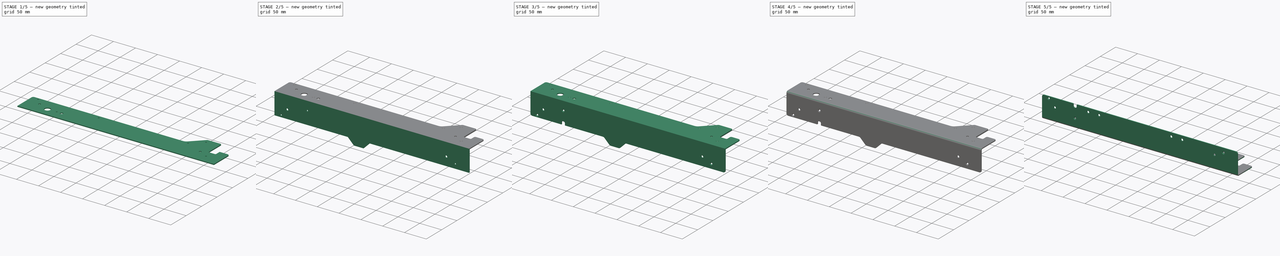
[diagram: build sequence overview — one tinted view per stage of 5, left to right]
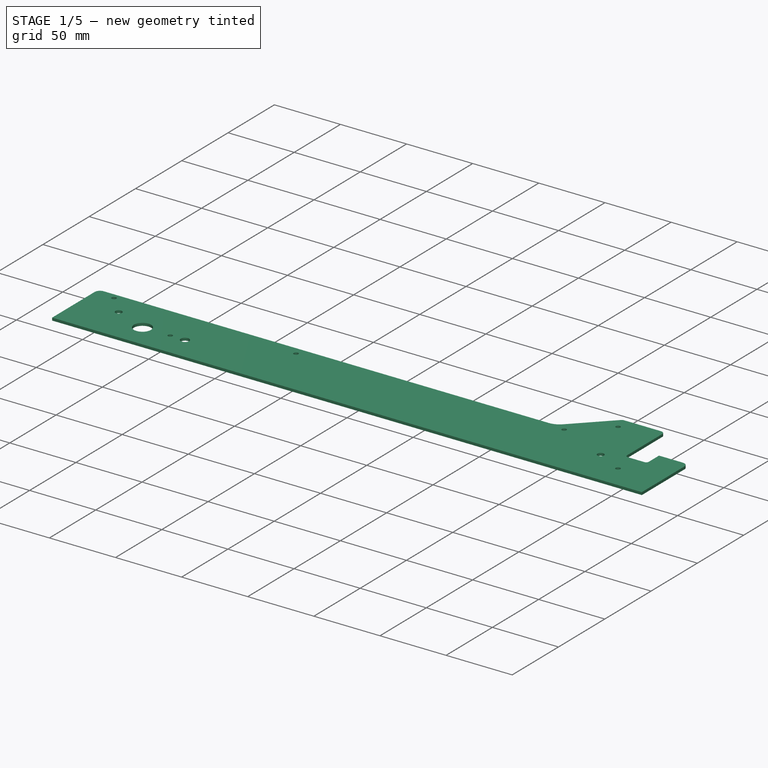
[diagram: stage 1 of 5 — iso view after this stage's code; geometry added in this stage tinted green]
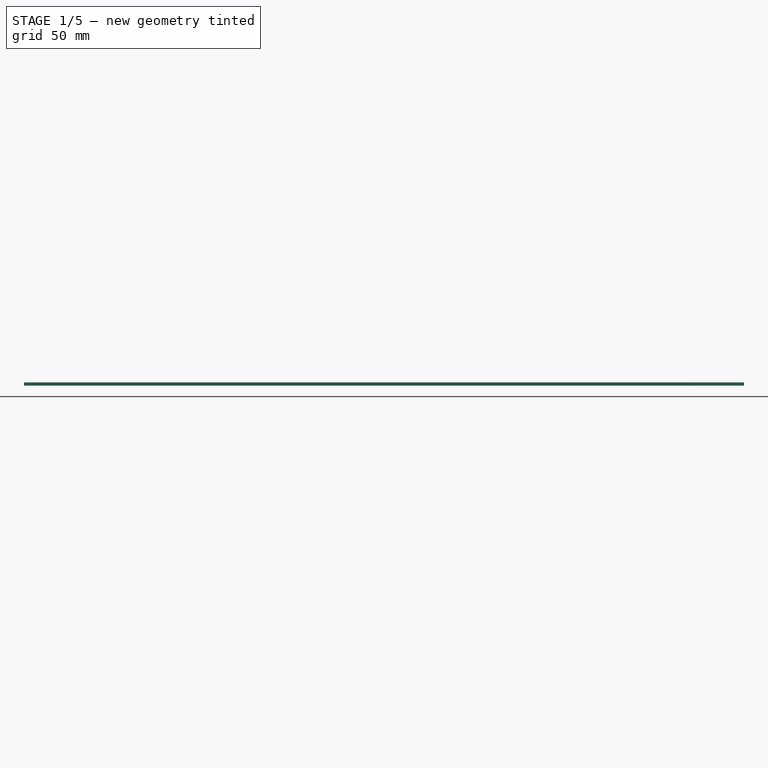
[diagram: stage 1 of 5 — front view after this stage's code; geometry added in this stage tinted green]
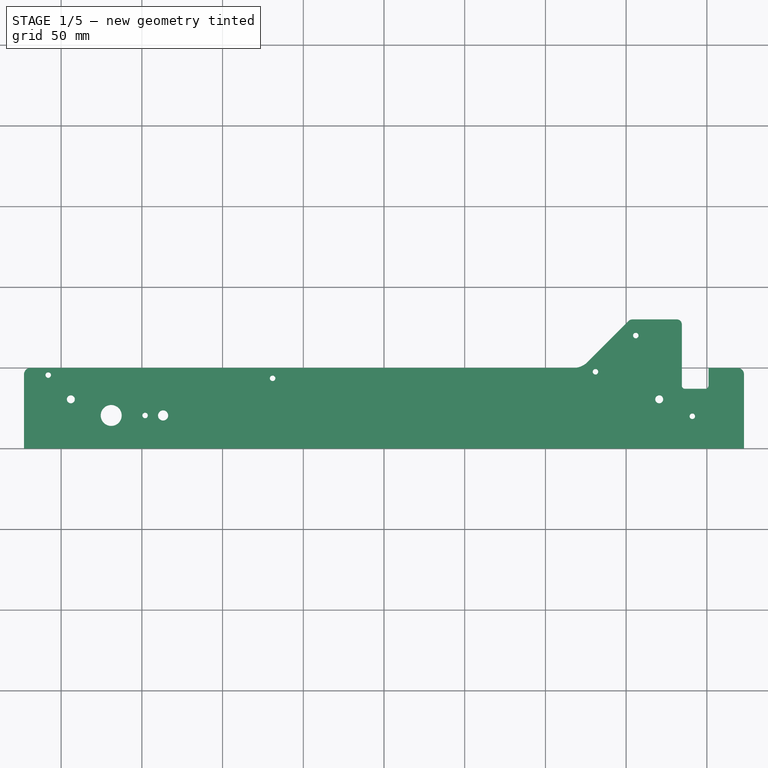
[diagram: stage 1 of 5 — top view after this stage's code; geometry added in this stage tinted green]
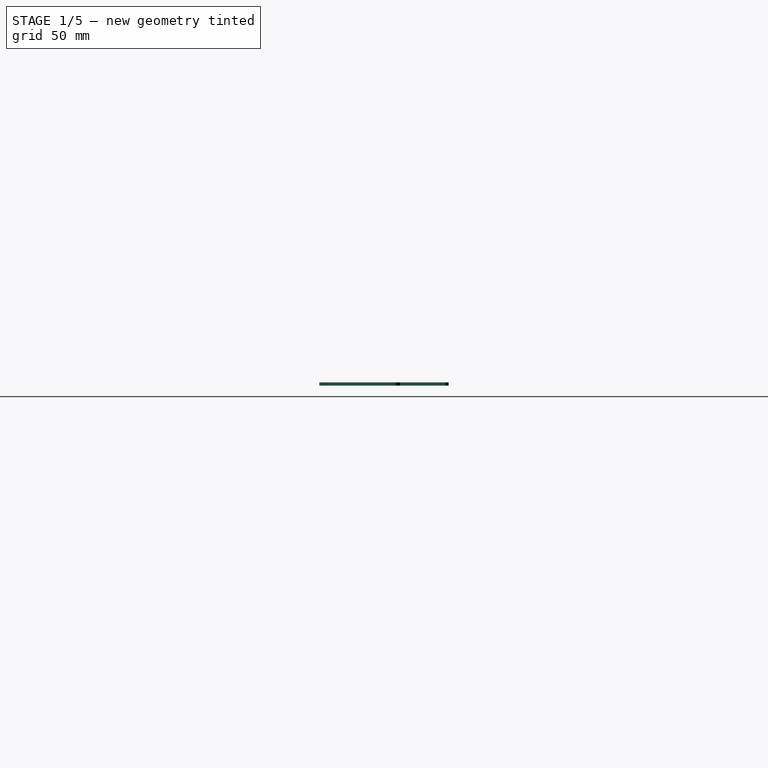
[diagram: stage 1 of 5 — right view after this stage's code; geometry added in this stage tinted green]
FCSTD DOCUMENT  (FreeCAD 0.14R3310 (Git))
Label: 12. ESQUINA MARCO INTERIOR 001 (MIRROR) (SIN LLAVE)
License: CC-BY 3.0
LicenseURL: http://creativecommons.org/licenses/by/3.0/
objects: PartDesign::Fillet×8, Sketcher::SketchObject×5, PartDesign::Pocket×3, PartDesign::Pad×2, PartDesign::Chamfer×2, Part::Mirroring×1
note: 26 computed .brp shape members not serialized (recipe doc carries the construction recipe); baked Part::Feature solids carry a one-line shape summary decoded from their .brp

FEATURE [Sketcher::SketchObject] Sketch
  sketch-geometry (25):
    g0: LineSegment StartX=-223 StartY=0 StartZ=0 EndX=223 EndY=0 EndZ=0
    g1: LineSegment StartX=-223 StartY=0 StartZ=0 EndX=-223 EndY=46 EndZ=0
    g2: LineSegment StartX=-219 StartY=50 StartZ=0 EndX=117.53 EndY=50 EndZ=0
    g3: LineSegment StartX=223 StartY=0 StartZ=0 EndX=223 EndY=50 EndZ=0
    g4: LineSegment StartX=223 StartY=50 StartZ=0 EndX=201 EndY=50 EndZ=0
    g5: LineSegment StartX=201 StartY=50 StartZ=0 EndX=201 EndY=37 EndZ=0
    g6: LineSegment StartX=201 StartY=37 StartZ=0 EndX=184.5 EndY=37 EndZ=0
    g7: LineSegment StartX=184.5 StartY=37 StartZ=0 EndX=184.5 EndY=76.9968 EndZ=0
    g8: LineSegment StartX=181.5 StartY=79.9968 StartZ=0 EndX=153.74 EndY=79.9968 EndZ=0
    g9: LineSegment StartX=126.015 StartY=53.5147 StartZ=0 EndX=151.619 EndY=79.1181 EndZ=0
    g10: ArcOfCircle CenterX=153.74 CenterY=76.9968 CenterZ=0 NormalX=0 NormalY=0 NormalZ=1 Radius=3 StartAngle=1.5708 EndAngle=2.35619
    g11: ArcOfCircle CenterX=117.53 CenterY=62 CenterZ=0 NormalX=0 NormalY=0 NormalZ=1 Radius=12 StartAngle=4.71239 EndAngle=5.49779
    g12: ArcOfCircle CenterX=181.5 CenterY=76.9968 CenterZ=0 NormalX=0 NormalY=0 NormalZ=1 Radius=3 StartAngle=0 EndAngle=1.5708
    g13: ArcOfCircle CenterX=-219 CenterY=46 CenterZ=0 NormalX=0 NormalY=0 NormalZ=1 Radius=4 StartAngle=1.5708 EndAngle=3.14159
    g14: LineSegment [constr] StartX=-223 StartY=20.5 StartZ=0 EndX=-123 EndY=20.5 EndZ=0
    g15: Circle CenterX=-169 CenterY=20.5 CenterZ=0 NormalX=0 NormalY=0 NormalZ=1 Radius=6.5
    g16: Circle CenterX=-148 CenterY=20.5 CenterZ=0 NormalX=0 NormalY=0 NormalZ=1 Radius=1.7
    g17: Circle CenterX=-136.85 CenterY=20.5 CenterZ=0 NormalX=0 NormalY=0 NormalZ=1 Radius=3.15
    g18: Circle CenterX=-208 CenterY=45.5 CenterZ=0 NormalX=0 NormalY=0 NormalZ=1 Radius=1.7
    g19: Circle CenterX=-69 CenterY=43.5 CenterZ=0 NormalX=0 NormalY=0 NormalZ=1 Radius=1.7
    g20: Circle CenterX=156 CenterY=69.9968 CenterZ=0 NormalX=0 NormalY=0 NormalZ=1 Radius=1.7
    g21: Circle CenterX=131 CenterY=47.54 CenterZ=0 NormalX=0 NormalY=0 NormalZ=1 Radius=1.7
    g22: Circle CenterX=170.5 CenterY=30.5 CenterZ=0 NormalX=0 NormalY=0 NormalZ=1 Radius=2.46
    g23: Circle CenterX=191 CenterY=20 CenterZ=0 NormalX=0 NormalY=0 NormalZ=1 Radius=1.7
    g24: Circle CenterX=-194 CenterY=30.5 CenterZ=0 NormalX=0 NormalY=0 NormalZ=1 Radius=2.46
  constraints (72):
    c: PointOnObject(g0,g-1)
    c: Horizontal(g0)
    c: Symmetric(g0,g0,g-1)
    c: Coincident(g1,g0)
    c: Vertical(g1)
    c: Horizontal(g2)
    c: Coincident(g3,g0)
    c: Vertical(g3)
    c: DistanceY(g3) = 50
    c: Coincident(g4,g3)
    c: Horizontal(g4)
    c: DistanceX(g4) = -22
    c: Coincident(g5,g4)
    c: Vertical(g5)
    c: DistanceY(g5) = -13
    c: Coincident(g6,g5)
    c: Horizontal(g6)
    c: DistanceX(g6) = -16.5
    c: Coincident(g7,g6)
    c: Vertical(g7)
    c: Horizontal(g8)
    c: Angle(g9,g2) = 2.35619
    c: Tangent(g8,g10)
    c: Tangent(g9,g10)
    c: Tangent(g9,g11)
    c: Tangent(g2,g11)
    c: Radius(g11) = 12
    c: Radius(g10) = 3
    c: Tangent(g8,g12)
    c: Tangent(g7,g12)
    c: Radius(g12) = 3
    c: DistanceX(g8) = -27.76
    c: Tangent(g2,g13)
    c: Tangent(g1,g13)
    c: Distance(g2,g0) = 50
    c: Radius(g13) = 4
    c: DistanceX(g2) = 336.53
    c: Horizontal(g14)
    c: PointOnObject(g14,g1)
    c: DistanceX(g14) = 100
    c: Distance(g0) = 446
    c: Distance(g14,g0) = 20.5
    c: PointOnObject(g15,g14)
    c: PointOnObject(g17,g14)
    c: Radius(g17) = 3.15
    c: Radius(g16) = 1.7
    c: Radius(g15) = 6.5
    c: Distance(g15,g14) = 54
    c: Distance(g16,g1) = 75
    c: Distance(g17,g1) = 86.15
    c: Distance(g18,g2) = 4.5
    c: Distance(g18,g1) = 15
    c: Equal(g18,g16)
    c: PointOnObject(g16,g14)
    c: Equal(g19,g18)
    c: Distance(g19,g2) = 6.5
    c: Distance(g19,g1) = 154
    c: Distance(g23,g3) = 32
    c: Distance(g23,g0) = 20
    c: Radius(g23) = 1.7
    c: Equal(g23,g21)
    c: Equal(g21,g20)
    c: Distance(g22,g0) = 30.5
    c: Distance(g22,g7) = 14
    c: Radius(g22) = 2.46
    c: Distance(g21,g2) = 2.46
    c: Distance(g21,g7) = 53.5
    c: Distance(g20,g8) = 10
    c: Distance(g20,g7) = 28.5
    c: Radius(g24) = 2.46
    c: Distance(g24,g1) = 29
    c: Distance(g24,g2) = 19.5
FEATURE [PartDesign::Pad] Pad
  Length = 2
  Length2 = 100
  Sketch = -> Sketch
  Type = 0
FEATURE [PartDesign::Fillet] Fillet
  Base = -> Pad [Edge11]
  Radius = 4
FEATURE [PartDesign::Fillet] Fillet001
  Base = -> Fillet [Edge57,Edge59]
  Radius = 2
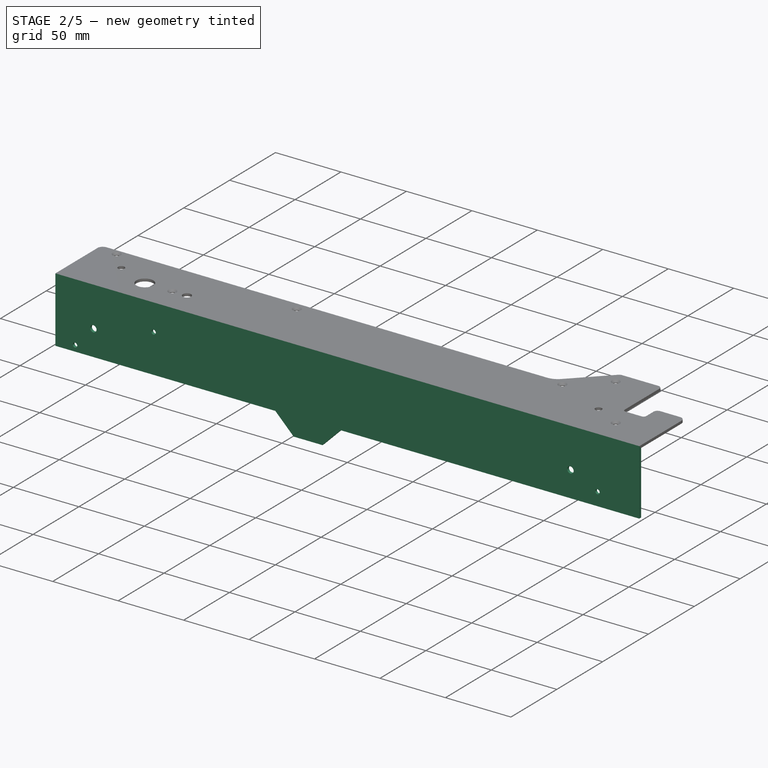
[diagram: stage 2 of 5 — iso view after this stage's code; geometry added in this stage tinted green]
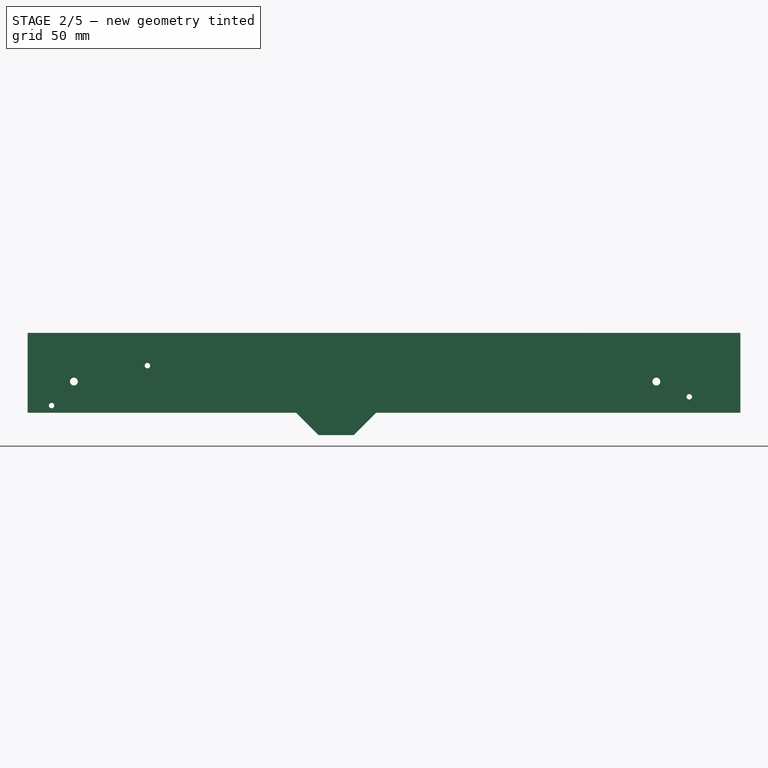
[diagram: stage 2 of 5 — front view after this stage's code; geometry added in this stage tinted green]
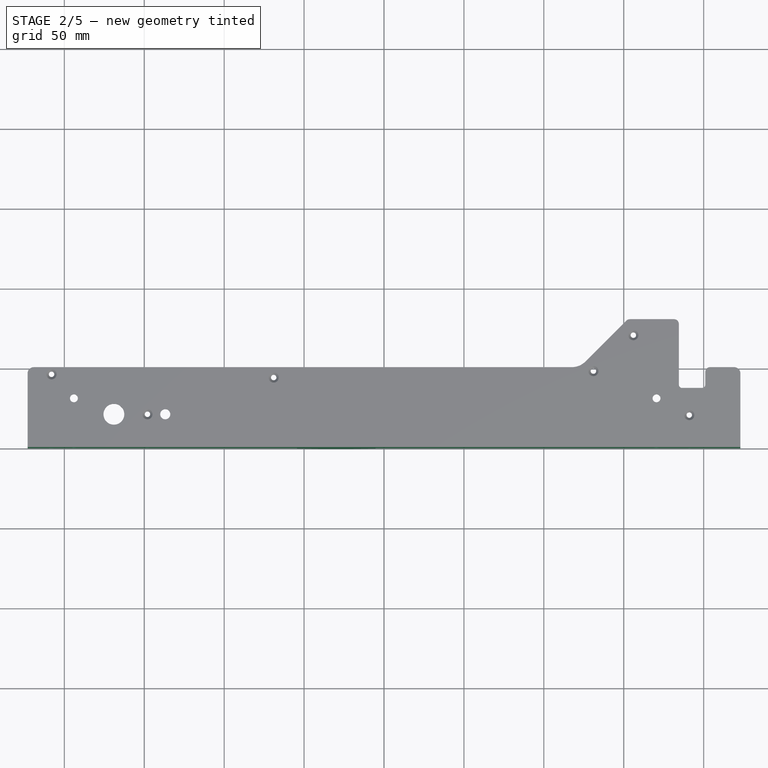
[diagram: stage 2 of 5 — top view after this stage's code; geometry added in this stage tinted green]
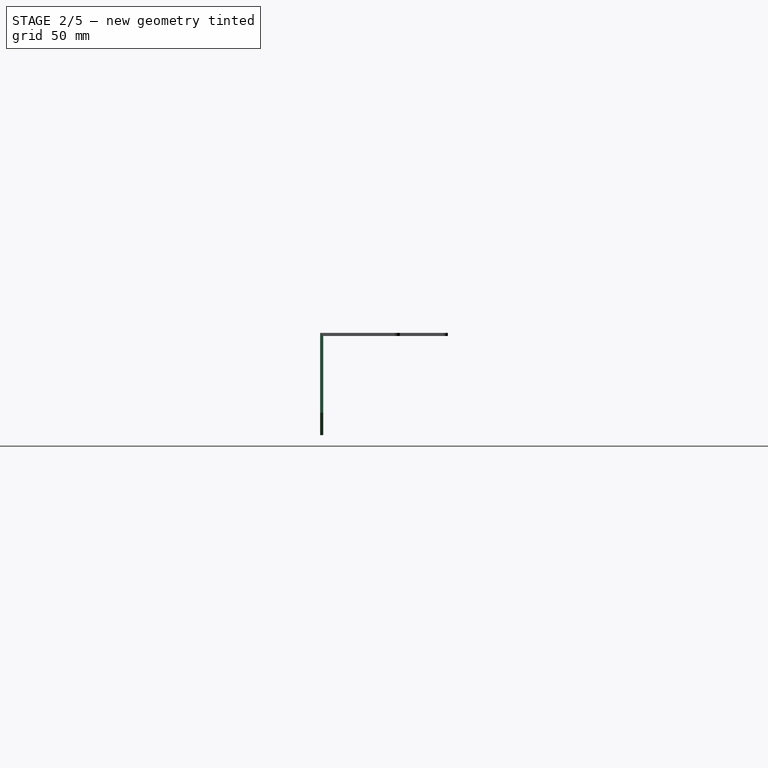
[diagram: stage 2 of 5 — right view after this stage's code; geometry added in this stage tinted green]
FEATURE [PartDesign::Fillet] Fillet002
  Base = -> Fillet001 [Edge29]
  Radius = 3
FEATURE [PartDesign::Chamfer] Chamfer
  Base = -> Fillet002 [Edge80,Edge84,Edge74,Edge76,Edge82,Edge78]
  Size = 1.45
FEATURE [Sketcher::SketchObject] Sketch001
  ExternalGeometry = -> [Chamfer]
  Placement = pos=(0,0,0) rot=(1,0,0;1.5708rad)
  Support = -> Chamfer [Face14]
  sketch-geometry (13):
    g0: LineSegment StartX=-223 StartY=2 StartZ=0 EndX=223 EndY=2 EndZ=0
    g1: LineSegment StartX=223 StartY=2 StartZ=0 EndX=223 EndY=-48 EndZ=0
    g2: LineSegment StartX=-223 StartY=-48 StartZ=0 EndX=-223 EndY=2 EndZ=0
    g3: LineSegment StartX=-223 StartY=-48 StartZ=0 EndX=-55 EndY=-48 EndZ=0
    g4: LineSegment StartX=-41 StartY=-62 StartZ=0 EndX=-19 EndY=-62 EndZ=0
    g5: LineSegment StartX=-55 StartY=-48 StartZ=0 EndX=-41 EndY=-62 EndZ=0
    g6: LineSegment StartX=-19 StartY=-62 StartZ=0 EndX=-5 EndY=-48 EndZ=0
    g7: LineSegment StartX=223 StartY=-48 StartZ=0 EndX=-5 EndY=-48 EndZ=0
    g8: Circle CenterX=-208 CenterY=-43.5 CenterZ=0 NormalX=0 NormalY=0 NormalZ=1 Radius=1.7
    g9: Circle CenterX=-194 CenterY=-28.5 CenterZ=0 NormalX=0 NormalY=0 NormalZ=1 Radius=2.46
    g10: Circle CenterX=-148 CenterY=-18.5 CenterZ=0 NormalX=0 NormalY=0 NormalZ=1 Radius=1.7
    g11: Circle CenterX=191 CenterY=-38 CenterZ=0 NormalX=0 NormalY=0 NormalZ=1 Radius=1.7
    g12: Circle CenterX=170.4 CenterY=-28.5 CenterZ=0 NormalX=0 NormalY=0 NormalZ=1 Radius=2.46
  constraints (38):
    c: Coincident(g0,g1)
    c: Coincident(g2,g0)
    c: Horizontal(g0)
    c: Vertical(g1)
    c: Vertical(g2)
    c: Symmetric(g0,g0,g-2)
    c: Coincident(g0,g-3)
    c: Coincident(g3,g2)
    c: Horizontal(g3)
    c: Distance(g3) = 168
    c: Distance(g2) = 50
    c: Horizontal(g4)
    c: Distance(g4) = 22
    c: Coincident(g5,g4)
    c: Angle(g3,g5) = 2.35619
    c: Coincident(g6,g4)
    c: Angle(g6,g4) = 2.35619
    c: Distance(g4,g3) = 14
    c: Coincident(g5,g3)
    c: Distance(g1) = 50
    c: Coincident(g7,g1)
    c: Horizontal(g7)
    c: Coincident(g7,g6)
    c: Equal(g8,g10)
    c: Radius(g8) = 1.7
    c: Distance(g8,g2) = 15
    c: Distance(g8,g3) = 4.5
    c: Distance(g9,g3) = 19.5
    c: Distance(g9,g2) = 29
    c: Radius(g9) = 2.46
    c: Distance(g10,g0) = 20.5
    c: Distance(g10,g2) = 75
    c: Equal(g12,g9)
    c: Equal(g8,g11)
    c: Distance(g11,g7) = 10
    c: Distance(g11,g1) = 32
    c: Distance(g12,g1) = 52.6
    c: Distance(g12,g7) = 19.5
FEATURE [PartDesign::Pad] Pad001
  Length = 2
  Length2 = 100
  Reversed = true
  Sketch = -> Sketch001
  Type = 0
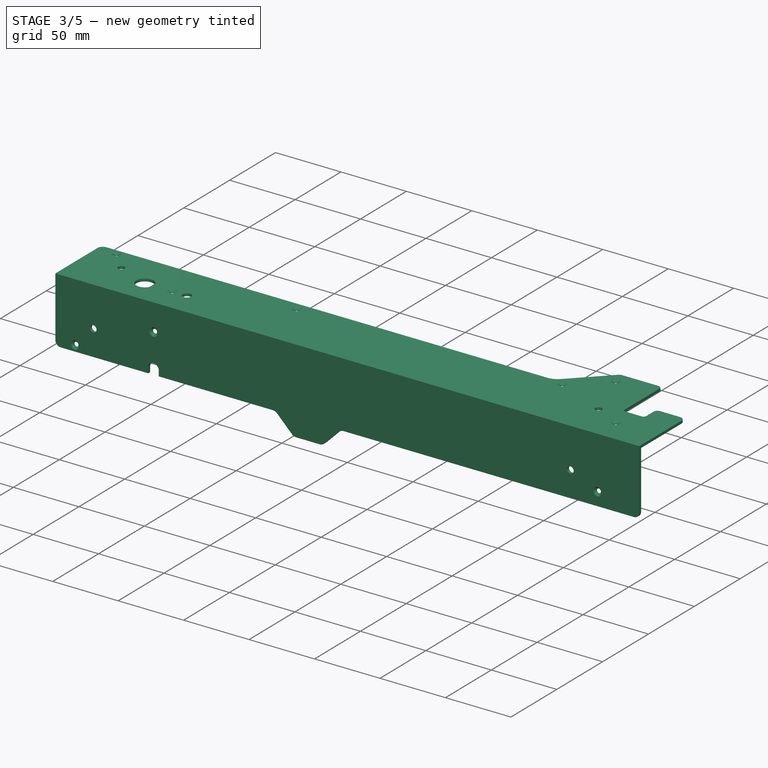
[diagram: stage 3 of 5 — iso view after this stage's code; geometry added in this stage tinted green]
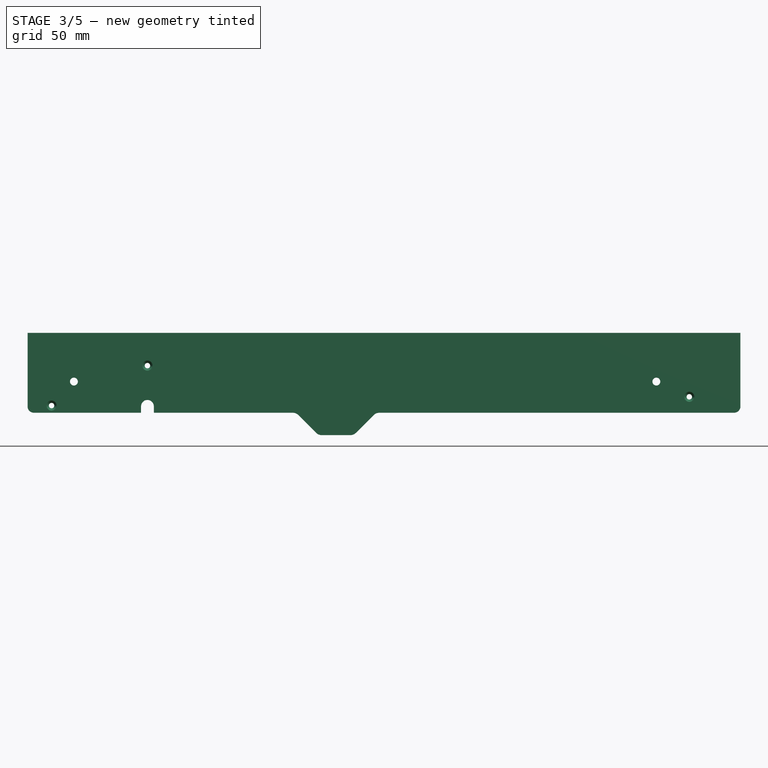
[diagram: stage 3 of 5 — front view after this stage's code; geometry added in this stage tinted green]
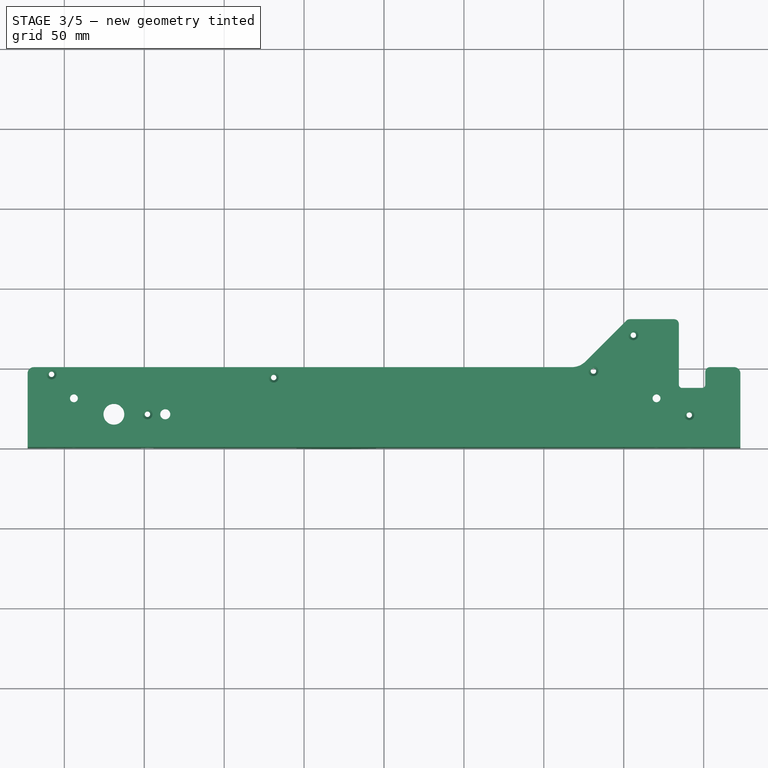
[diagram: stage 3 of 5 — top view after this stage's code; geometry added in this stage tinted green]
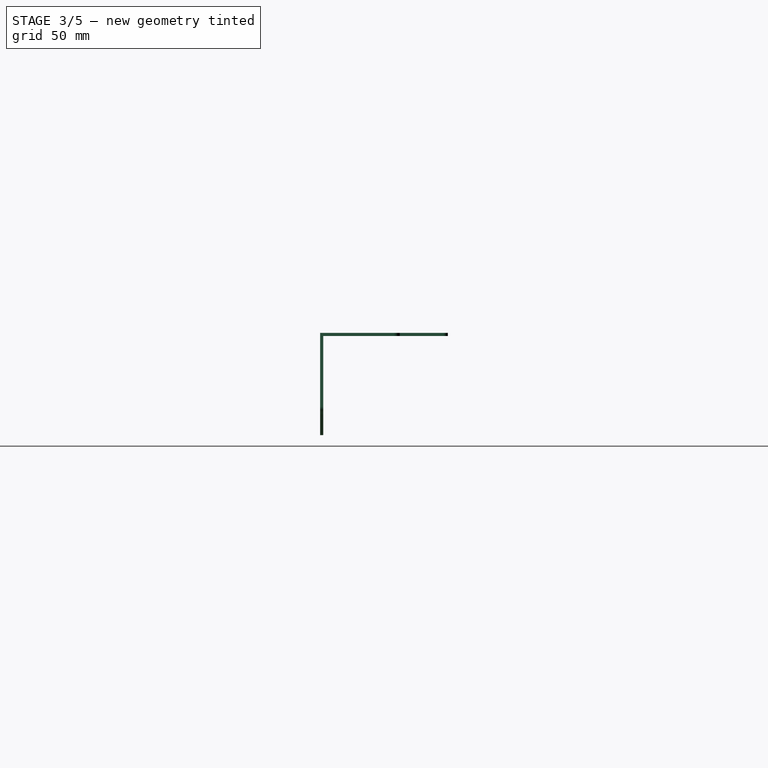
[diagram: stage 3 of 5 — right view after this stage's code; geometry added in this stage tinted green]
FEATURE [PartDesign::Chamfer] Chamfer001
  Base = -> Pad001 [Edge30,Edge34,Edge32]
  Size = 1.45
FEATURE [Sketcher::SketchObject] Sketch002
  ExternalGeometry = -> [Chamfer001]
  Placement = pos=(0,0,0) rot=(1,0,0;1.5708rad)
  Support = -> Chamfer001 [Face4]
  sketch-geometry (4):
    g0: LineSegment StartX=-152 StartY=-48 StartZ=0 EndX=-152 EndY=-44 EndZ=0
    g1: LineSegment StartX=-144 StartY=-48 StartZ=0 EndX=-144 EndY=-44 EndZ=0
    g2: ArcOfCircle CenterX=-148 CenterY=-44 CenterZ=0 NormalX=0 NormalY=0 NormalZ=1 Radius=4 StartAngle=6.28318 EndAngle=9.42478
    g3: LineSegment StartX=-152 StartY=-48 StartZ=0 EndX=-144 EndY=-48 EndZ=0
  constraints (13):
    c: Vertical(g0)
    c: Vertical(g1)
    c: Coincident(g2,g0)
    c: Coincident(g2,g1)
    c: Tangent(g2,g0)
    c: Tangent(g2,g1)
    c: Radius(g2) = 4
    c: PointOnObject(g1,g-3)
    c: PointOnObject(g0,g-3)
    c: Distance(g1) = 4
    c: Distance(g0,g-3) = 71
    c: Coincident(g3,g0)
    c: Coincident(g3,g1)
FEATURE [PartDesign::Pocket] Pocket
  Length = 5
  Sketch = -> Sketch002
  Type = 0
FEATURE [PartDesign::Fillet] Fillet003
  Base = -> Pocket [Edge42,Edge69]
  Radius = 4
FEATURE [PartDesign::Fillet] Fillet004
  Base = -> Fillet003 [Edge67,Edge68,Edge72,Edge75]
  Radius = 5
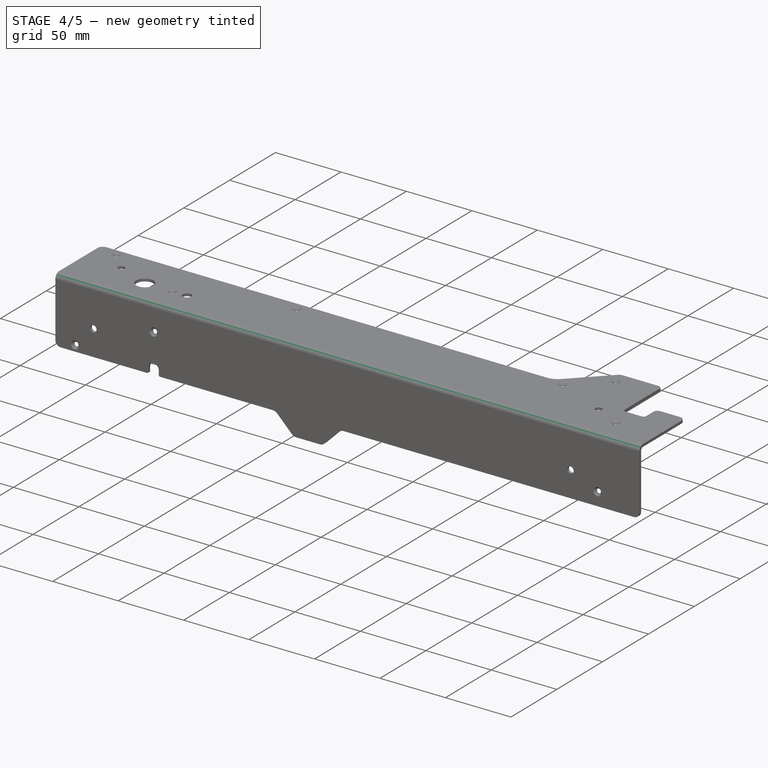
[diagram: stage 4 of 5 — iso view after this stage's code; geometry added in this stage tinted green]
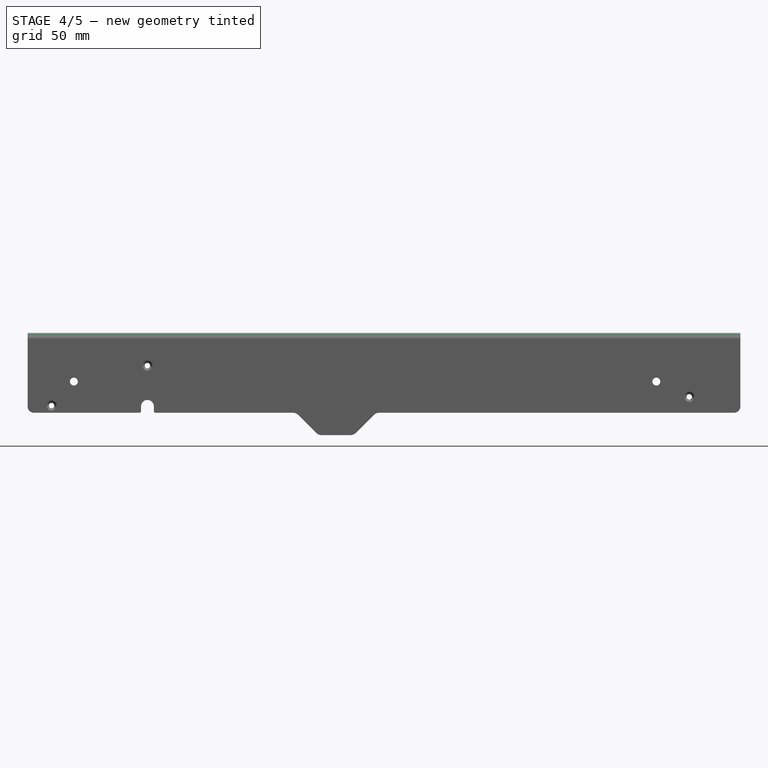
[diagram: stage 4 of 5 — front view after this stage's code; geometry added in this stage tinted green]
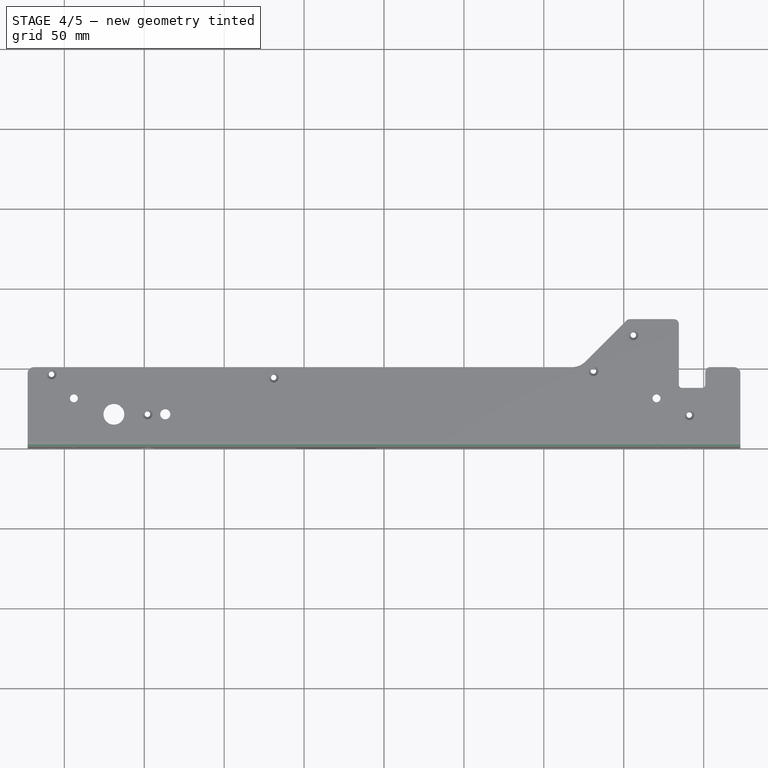
[diagram: stage 4 of 5 — top view after this stage's code; geometry added in this stage tinted green]
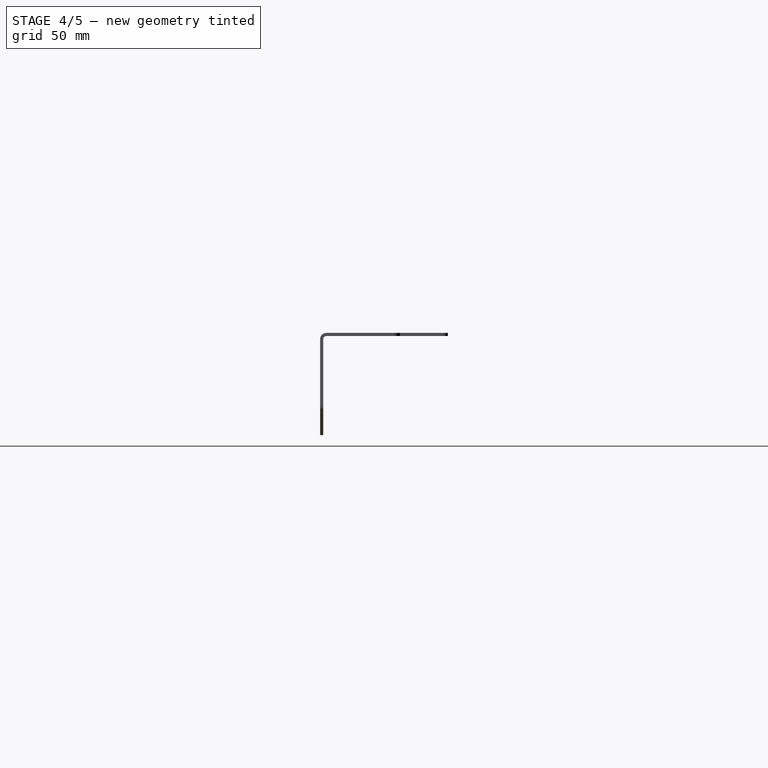
[diagram: stage 4 of 5 — right view after this stage's code; geometry added in this stage tinted green]
FEATURE [PartDesign::Fillet] Fillet005
  Base = -> Fillet004 [Edge79,Edge85]
  Radius = 1
FEATURE [PartDesign::Fillet] Fillet006
  Base = -> Fillet005 [Edge7]
  Radius = 2
FEATURE [PartDesign::Fillet] Fillet007
  Base = -> Fillet006 [Edge108]
  Radius = 4
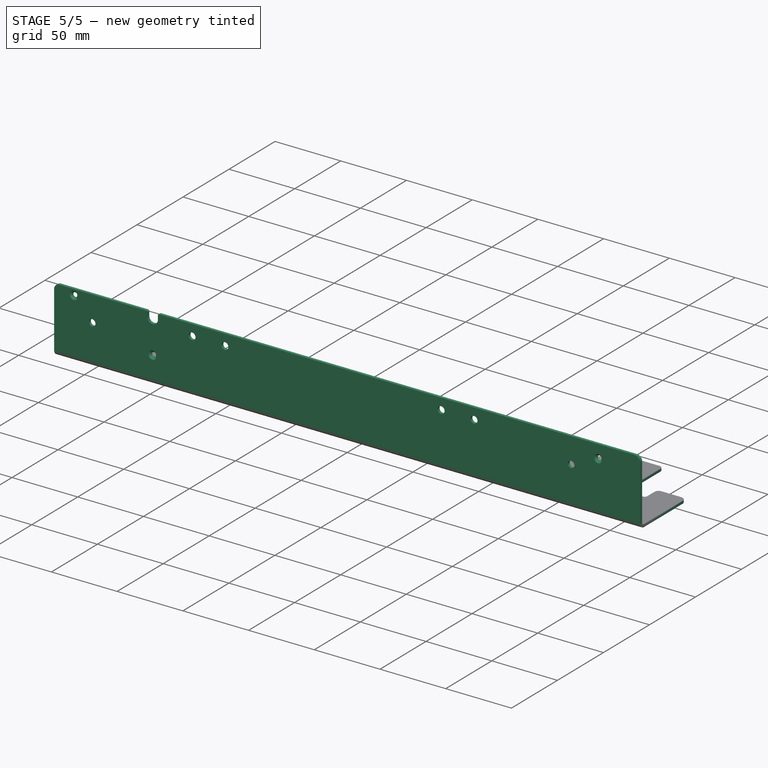
[diagram: stage 5 of 5 — iso view after this stage's code; geometry added in this stage tinted green]
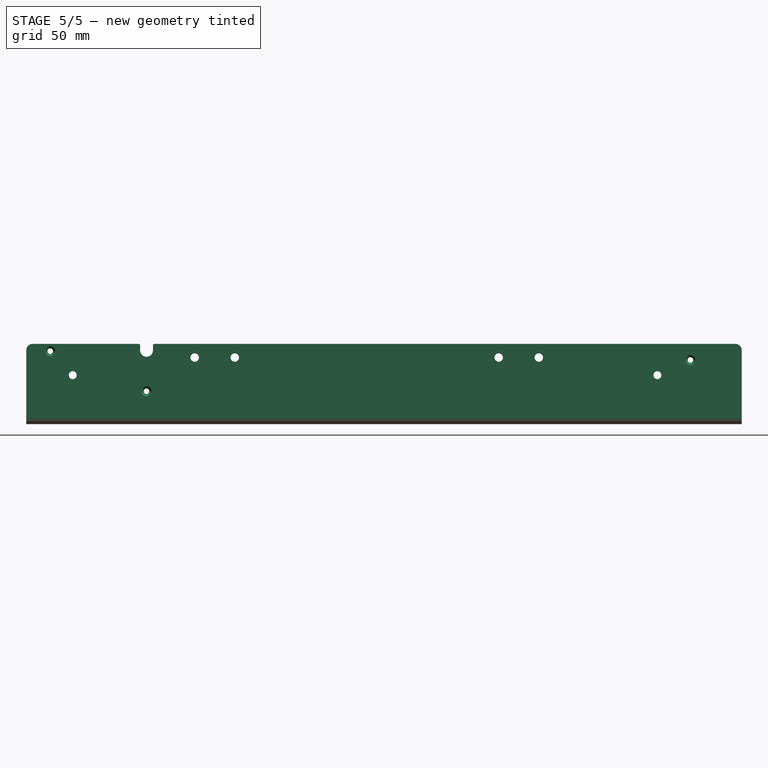
[diagram: stage 5 of 5 — front view after this stage's code; geometry added in this stage tinted green]
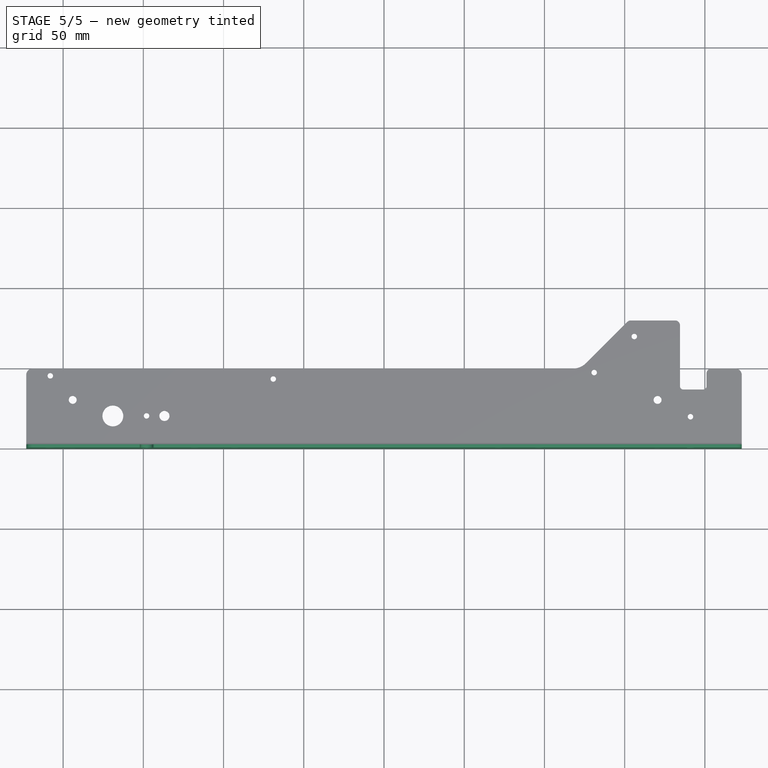
[diagram: stage 5 of 5 — top view after this stage's code; geometry added in this stage tinted green]
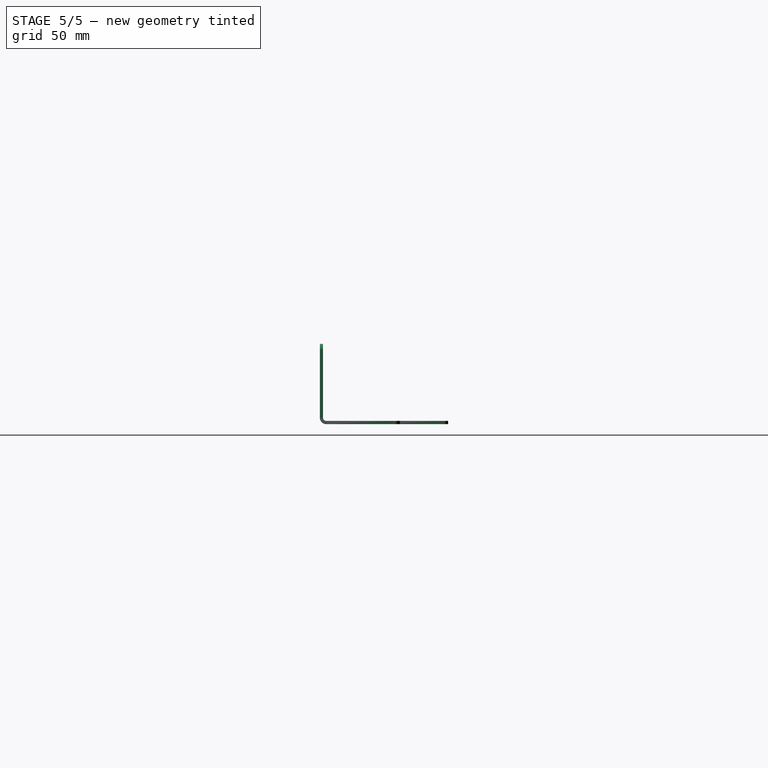
[diagram: stage 5 of 5 — right view after this stage's code; geometry added in this stage tinted green]
FEATURE [Part::Mirroring] Part__Mirroring  label="Fillet007 (Mirror #1)"
  Base = (0,0,0)
  Normal = (0,0,1)
  Source = -> Fillet007
FEATURE [Sketcher::SketchObject] Sketch003
  ExternalGeometry = -> [Part__Mirroring]
  Placement = pos=(0,2,0) rot=(0,0.707107,0.707107;3.14159rad)
  Support = -> Part__Mirroring [Face6]
  sketch-geometry (4):
    g0: LineSegment StartX=-65 StartY=88 StartZ=0 EndX=65 EndY=88 EndZ=0
    g1: LineSegment StartX=65 StartY=88 StartZ=0 EndX=65 EndY=48 EndZ=0
    g2: LineSegment StartX=65 StartY=48 StartZ=0 EndX=-65 EndY=48 EndZ=0
    g3: LineSegment StartX=-65 StartY=48 StartZ=0 EndX=-65 EndY=88 EndZ=0
  constraints (12):
    c: Coincident(g0,g1)
    c: Coincident(g1,g2)
    c: Coincident(g2,g3)
    c: Coincident(g3,g0)
    c: Horizontal(g0)
    c: Horizontal(g2)
    c: Vertical(g1)
    c: Vertical(g3)
    c: Distance(g1,g-3) = 50
    c: Symmetric(g2,g1,g-2)
    c: DistanceY(g1) = -40
    c: DistanceX(g0) = 130
FEATURE [PartDesign::Pocket] Pocket001
  Length = 5
  Sketch = -> Sketch003
  Type = 0
FEATURE [Sketcher::SketchObject] Sketch004
  ExternalGeometry = -> [Pocket001]
  Placement = pos=(0,0,0) rot=(1,0,0;1.5708rad)
  Support = -> Pocket001 [Face2]
  sketch-geometry (5):
    g0: LineSegment [constr] StartX=-223 StartY=39.5 StartZ=0 EndX=223 EndY=39.5 EndZ=0
    g1: Circle CenterX=-118 CenterY=39.5 CenterZ=0 NormalX=0 NormalY=0 NormalZ=1 Radius=2.62
    g2: Circle CenterX=-93 CenterY=39.5 CenterZ=0 NormalX=0 NormalY=0 NormalZ=1 Radius=2.62
    g3: Circle CenterX=71.5 CenterY=39.5 CenterZ=0 NormalX=0 NormalY=0 NormalZ=1 Radius=2.62
    g4: Circle CenterX=96.5 CenterY=39.5 CenterZ=0 NormalX=0 NormalY=0 NormalZ=1 Radius=2.62
  constraints (16):
    c: Horizontal(g0)
    c: Symmetric(g0,g0,g-2)
    c: Distance(g-3,g0) = 8.5
    c: PointOnObject(g0,g-4)
    c: PointOnObject(g1,g0)
    c: PointOnObject(g2,g0)
    c: PointOnObject(g3,g0)
    c: PointOnObject(g4,g0)
    c: Equal(g2,g3)
    c: Equal(g3,g1)
    c: Equal(g1,g4)
    c: Radius(g1) = 2.62
    c: Distance(g1,g-4) = 105
    c: Distance(g1,g2) = 25
    c: Distance(g2,g3) = 164.5
    c: Distance(g3,g4) = 25
FEATURE [PartDesign::Pocket] Pocket002
  Length = 5
  Sketch = -> Sketch004
  Type = 0
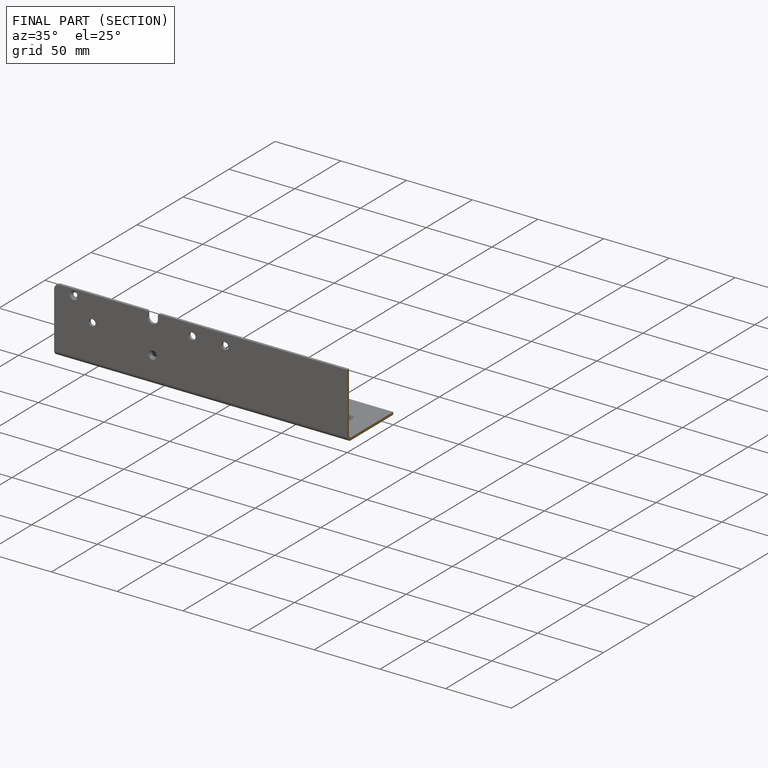
[diagram: finished part — half-section view (interior)]
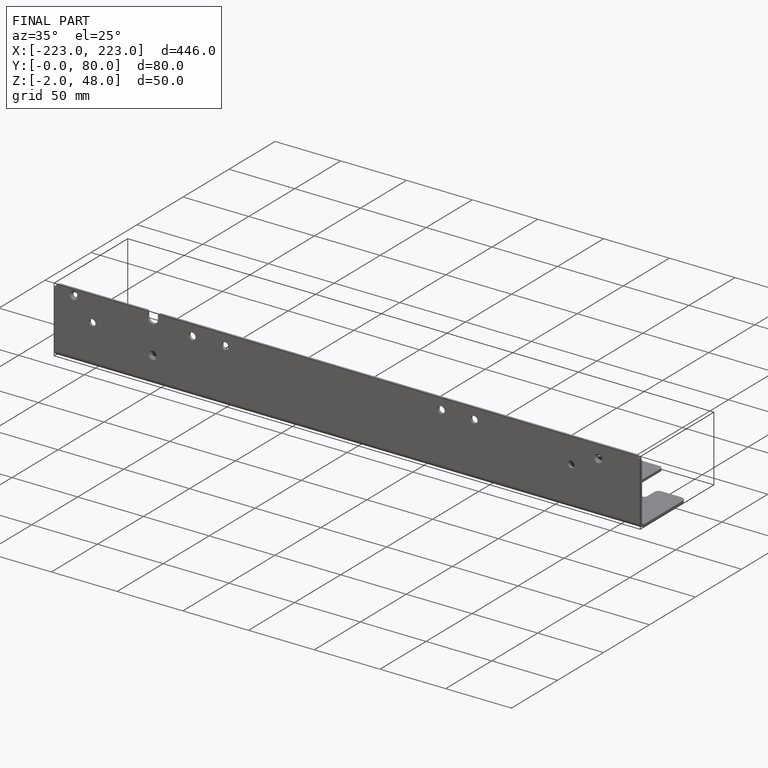
[diagram: finished part — iso view with bounding-box wireframe]
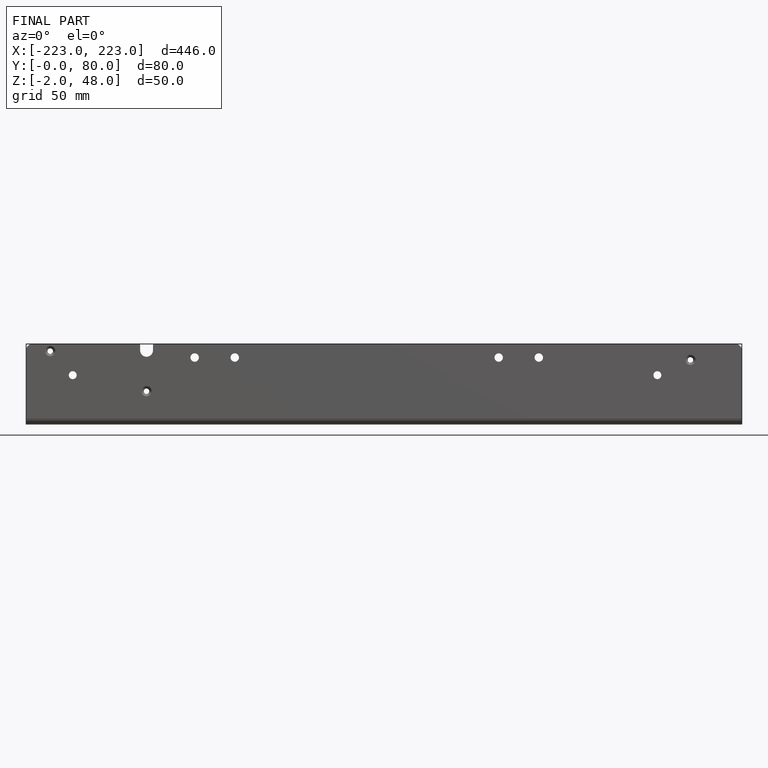
[diagram: finished part — front view with bounding-box wireframe]
